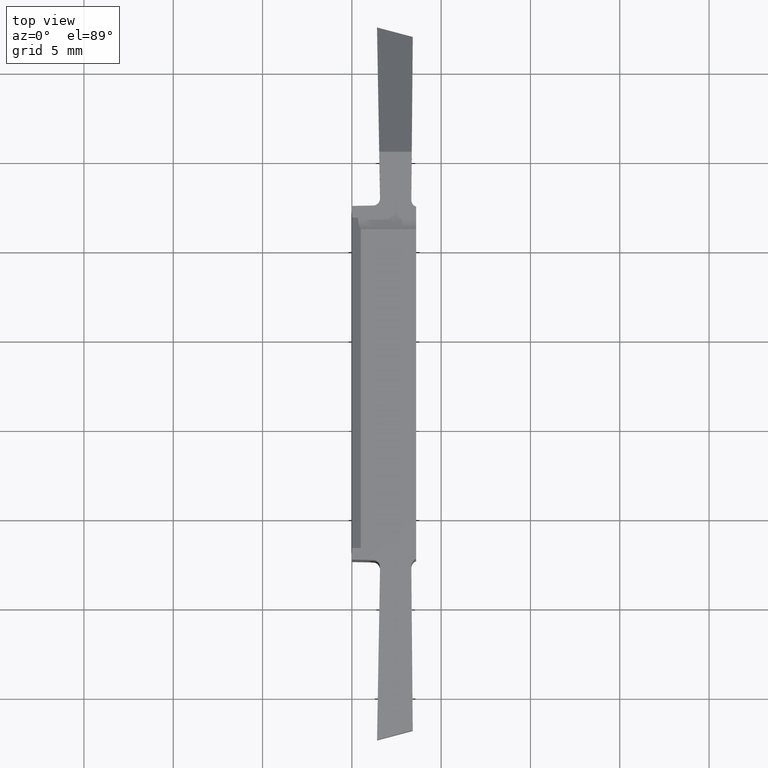
[diagram: clean part render]
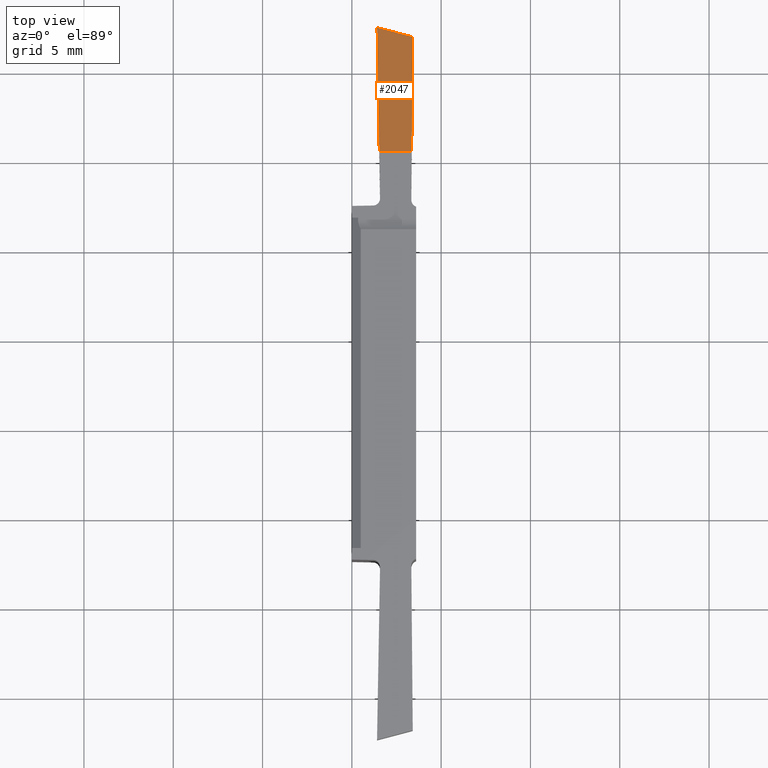
[diagram: same view with one face highlighted and labeled with its STEP entity id]
A machine part, top view. The second image highlights one B-rep face of the part: STEP entity #2047.
In plain terms, the highlighted planar face has unit normal (-0, -0.6428, -0.766).
Its self-contained STEP definition (entity closure, byte-faithful):
#1674=CARTESIAN_POINT('',(1.533269567,20.51289639,0.8499998373));
#1675=VERTEX_POINT('',#1674);
#1686=CARTESIAN_POINT('',(3.35304676,20.51289639,0.8499996442));
#1687=DIRECTION('',(-1.,0.,1.06116769E-07));
#1688=VECTOR('',#1687,1.819777193);
#1689=LINE('',#1686,#1688);
#1690=CARTESIAN_POINT('',(3.35304676,20.51289639,0.8499996442));
#1691=VERTEX_POINT('',#1690);
#1692=EDGE_CURVE('',#1691,#1675,#1689,.T.);
#1853=CARTESIAN_POINT('',(3.35304676,20.51289639,0.8499996442));
#1854=DIRECTION('',(0.006684950988,0.7660273259,-0.6427732473));
#1855=VECTOR('',#1854,8.519546244);
#1856=LINE('',#1853,#1855);
#1857=CARTESIAN_POINT('',(3.409999509,27.03910162,-4.62613676));
#1858=VERTEX_POINT('',#1857);
#1859=EDGE_CURVE('',#1691,#1858,#1856,.T.);
#1939=CARTESIAN_POINT('',(1.409999461,27.575,-5.075808685));
#1940=VERTEX_POINT('',#1939);
#1974=CARTESIAN_POINT('',(3.409999509,27.03910162,-4.62613676));
#1975=DIRECTION('',(-0.9439222787,0.2529232063,-0.2122276689));
#1976=VECTOR('',#1975,2.118818565);
#1977=LINE('',#1974,#1976);
#1978=EDGE_CURVE('',#1858,#1940,#1977,.T.);
#1999=CARTESIAN_POINT('',(2.904999748,24.35802452,-2.376445903));
#2000=DIRECTION('',(-8.129016123E-08,-0.6427876097,-0.7660444431));
#2001=DIRECTION('',(-6.227187629E-08,-0.4924038765,0.4131759112));
#2002=AXIS2_PLACEMENT_3D('',#1999,#2000,#2001);
#2003=PLANE('',#2002);
#2004=CARTESIAN_POINT('',(1.409999461,27.575,-5.075808685));
#2005=DIRECTION('',(0.0133702285,-0.7659759706,0.642730153));
#2006=VECTOR('',#2005,9.219745636);
#2007=LINE('',#2004,#2006);
#2008=EDGE_CURVE('',#1940,#1675,#2007,.T.);
#2009=ORIENTED_EDGE('Edge 859',*,*,#2008,.T.);
#2018=ORIENTED_EDGE('Edge 417',*,*,#1978,.T.);
#2027=ORIENTED_EDGE('Edge 794',*,*,#1859,.T.);
#2036=ORIENTED_EDGE('Edge 540',*,*,#1692,.F.);
#2045=EDGE_LOOP('',(#2036,#2027,#2018,#2009));
#2046=FACE_OUTER_BOUND('Loop 428',#2045,.T.);
#2047=ADVANCED_FACE('Face 429',(#2046),#2003,.F.);